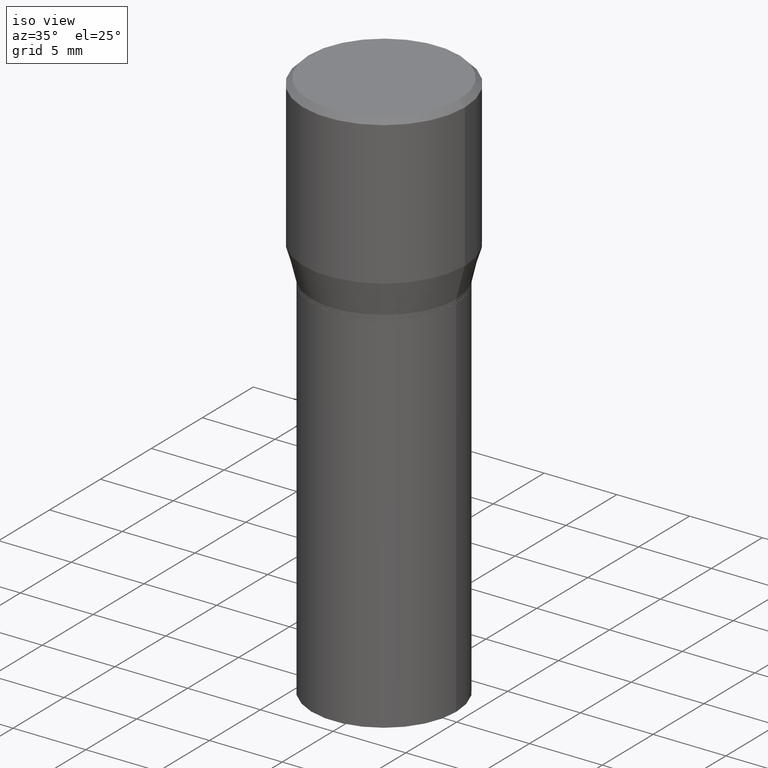
[diagram: clean part render]
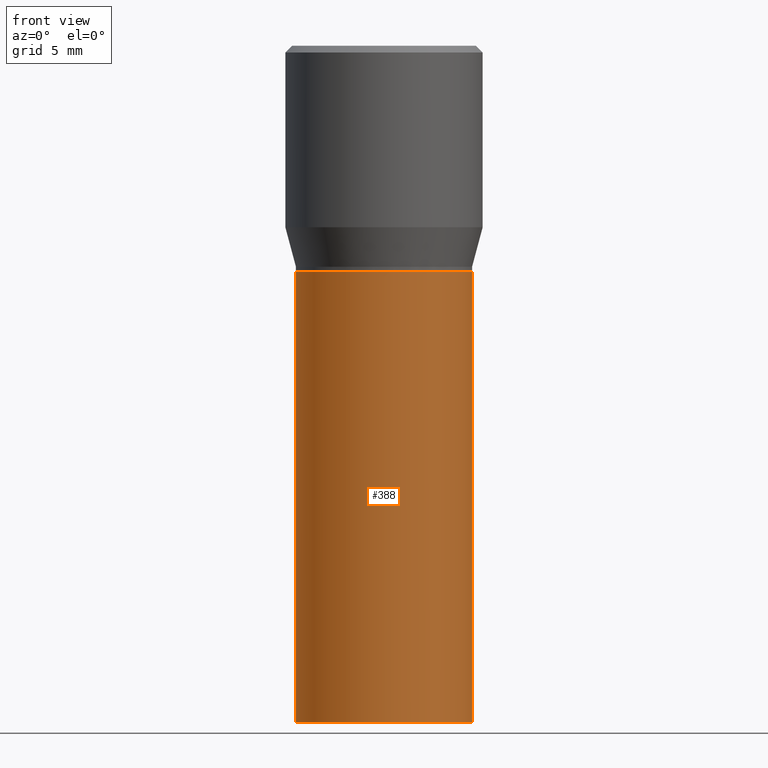
[diagram: tour spotlight — one face highlighted and labeled with its STEP entity id]
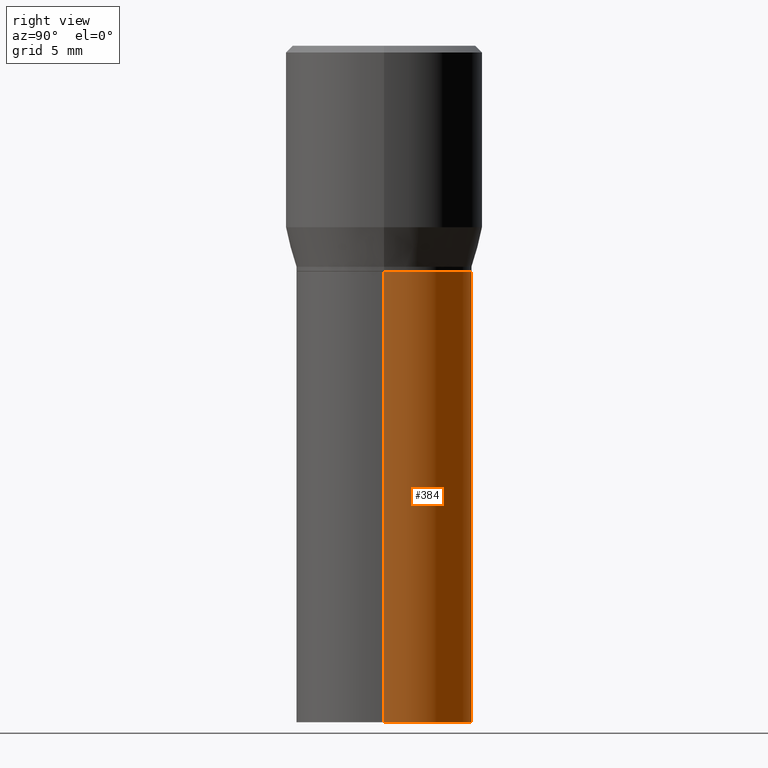
[diagram: tour spotlight — one face highlighted and labeled with its STEP entity id]
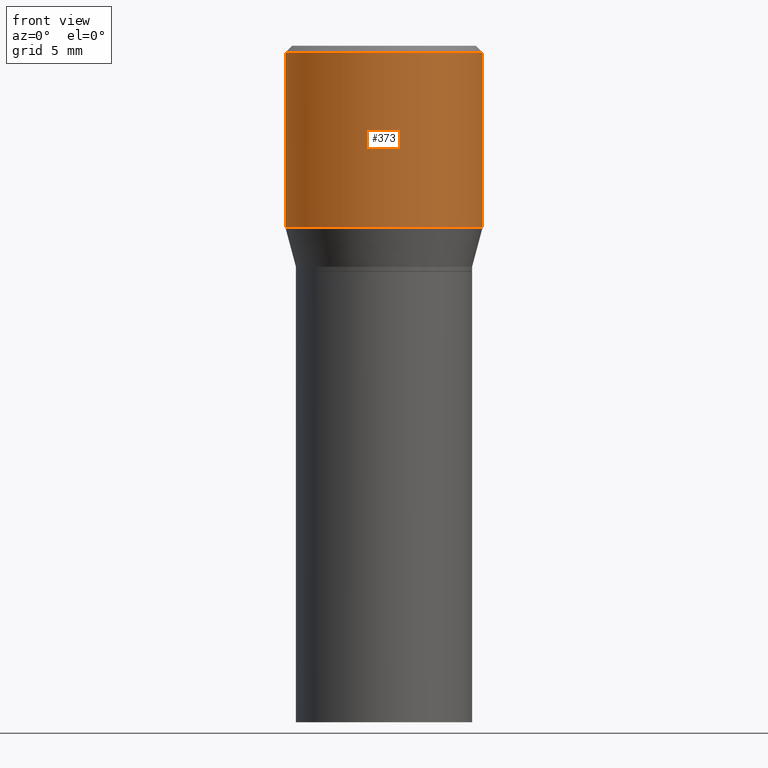
[diagram: tour spotlight — one face highlighted and labeled with its STEP entity id]
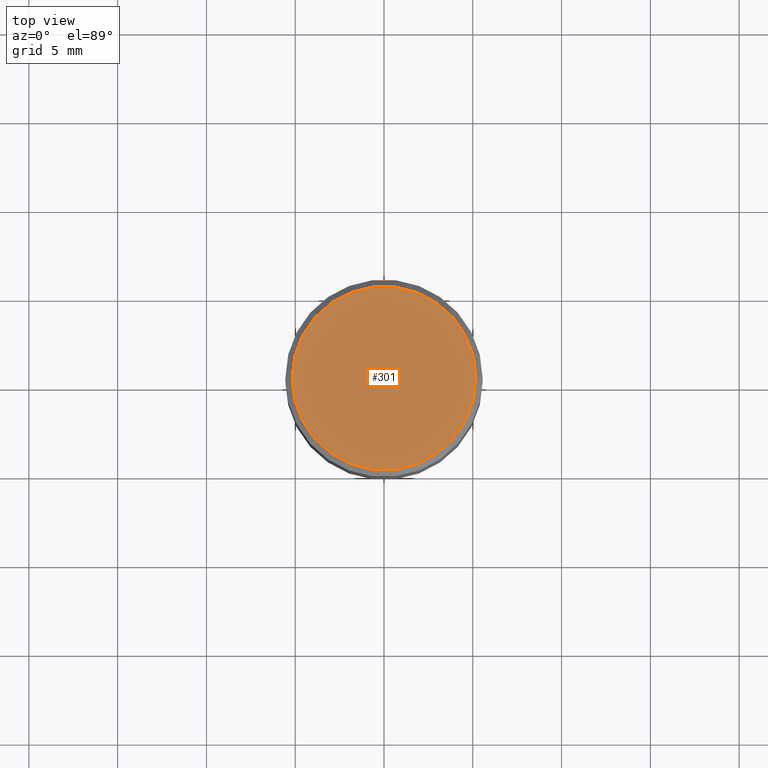
[diagram: tour spotlight — one face highlighted and labeled with its STEP entity id]
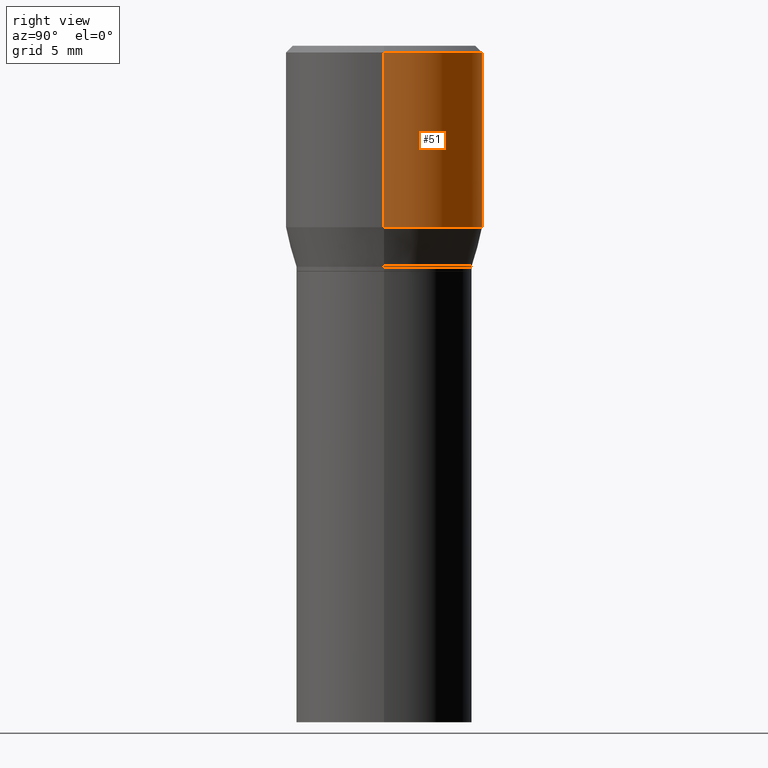
[diagram: tour spotlight — one face highlighted and labeled with its STEP entity id]
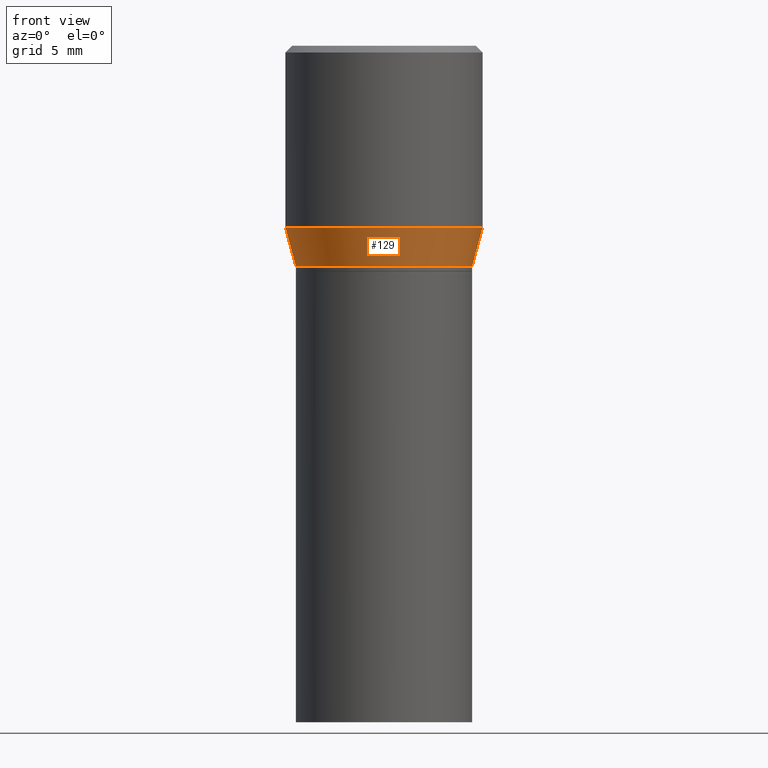
[diagram: tour spotlight — one face highlighted and labeled with its STEP entity id]
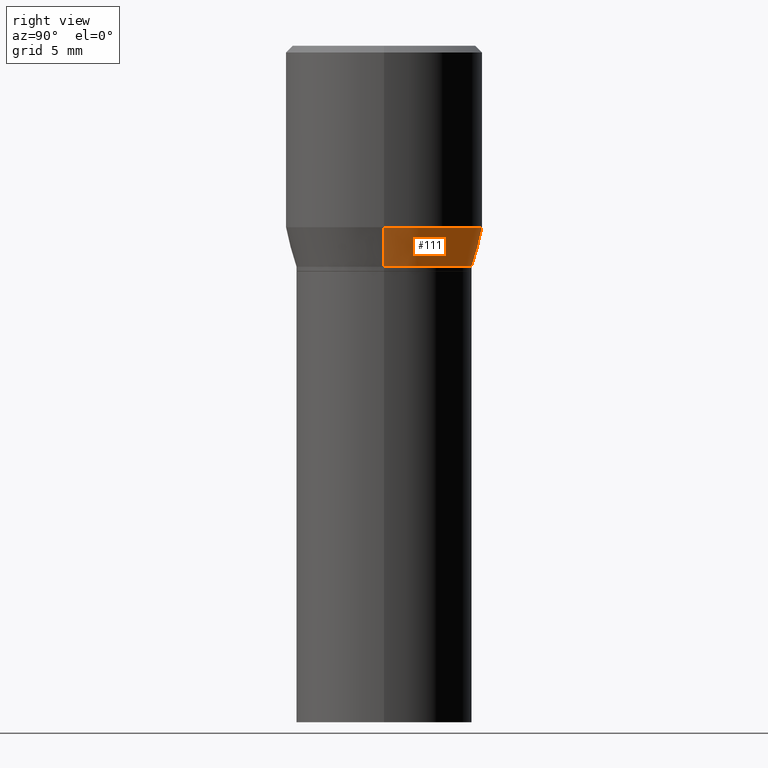
[diagram: tour spotlight — one face highlighted and labeled with its STEP entity id]
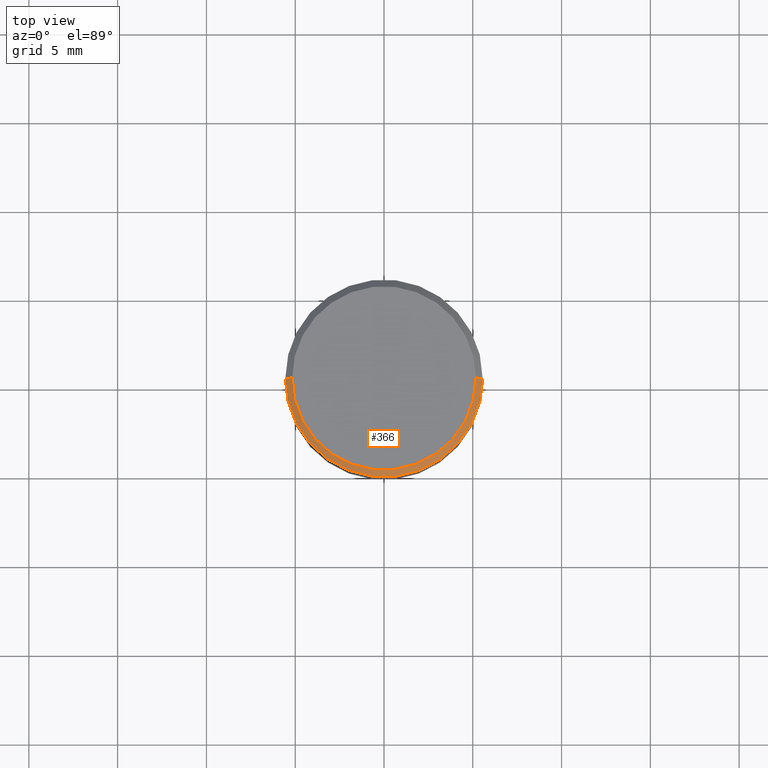
[diagram: tour spotlight — one face highlighted and labeled with its STEP entity id]
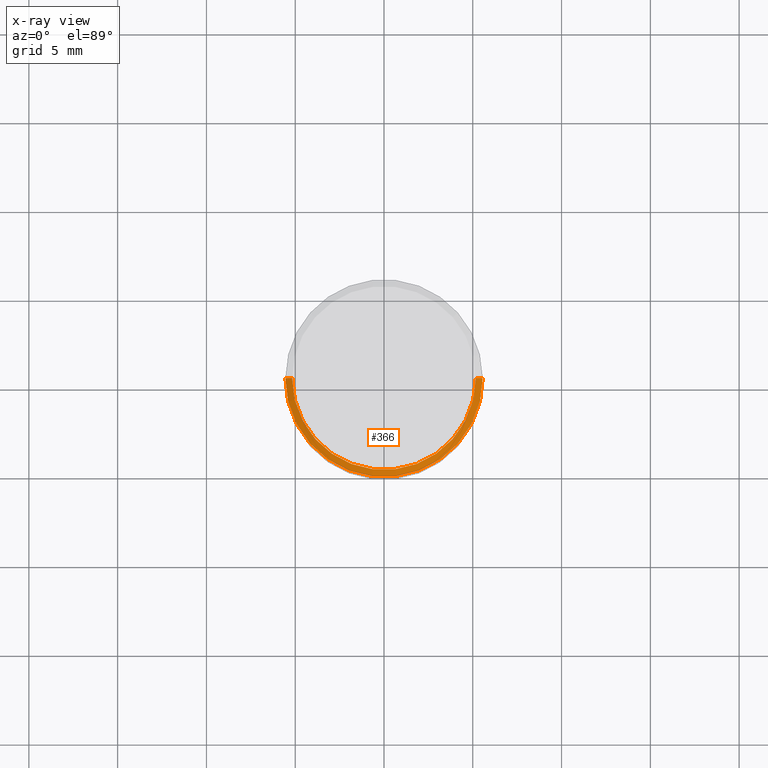
[diagram: x-ray of the same camera — body ghosted, this tour face saturated]
A machine part: a face-by-face anatomy tour. The part has 16 B-rep faces; the first image is the clean iso view, then the 8 largest visible faces are spotlighted one at a time (largest first), each with its STEP entity span.

Face 1 — front view, entity #388. In plain terms, the highlighted cylindrical surface (partial cylindrical patch) has radius 4.9606 mm, axis along (-0, 0, 1).
Definition (entity closure, byte-faithful):
#6 = AXIS2_PLACEMENT_3D ( 'NONE', #427, #128, #246 ) ;
#17 = AXIS2_PLACEMENT_3D ( 'NONE', #25, #180, #69 ) ;
#25 = CARTESIAN_POINT ( 'NONE',  ( 1.222734403092568719E-29, -1.745740669421573186E-15, -0.5000000000000001110 ) ) ;
#67 = DIRECTION ( 'NONE',  ( 1.000000000000000000, -6.982962677686265922E-15, 4.876176775795935793E-29 ) ) ;
#69 = DIRECTION ( 'NONE',  ( 1.000000000000000000, -6.982962677686264344E-15, 0.000000000000000000 ) ) ;
#77 = CARTESIAN_POINT ( 'NONE',  ( 0.1953000000000000014, -1.363772610952127695E-15, 9.523173243129462177E-30 ) ) ;
#83 = CARTESIAN_POINT ( 'NONE',  ( -0.1953000000000000014, -2.103791375903670501E-15, -1.500000000000000222 ) ) ;
#85 = EDGE_CURVE ( 'NONE', #262, #268, #168, .T. ) ;
#94 = DIRECTION ( 'NONE',  ( -2.445468806185136877E-29, 3.491481338843145188E-15, 1.000000000000000000 ) ) ;
#104 = CYLINDRICAL_SURFACE ( 'NONE', #401, 0.1953000000000000014 ) ;
#128 = DIRECTION ( 'NONE',  ( -2.445468806185136597E-29, 3.491481338843145583E-15, 1.000000000000000000 ) ) ;
#161 = ORIENTED_EDGE ( 'NONE', *, *, #85, .F. ) ;
#168 = CIRCLE ( 'NONE', #17, 0.1953000000000000014 ) ;
#172 = DIRECTION ( 'NONE',  ( -2.445468806185136597E-29, 3.491481338843145583E-15, 1.000000000000000000 ) ) ;
#174 = CIRCLE ( 'NONE', #6, 0.1953000000000000014 ) ;
#180 = DIRECTION ( 'NONE',  ( -2.445468806185136597E-29, 3.491481338843145583E-15, 1.000000000000000000 ) ) ;
#187 = ORIENTED_EDGE ( 'NONE', *, *, #261, .T. ) ;
#199 = VERTEX_POINT ( 'NONE', #83 ) ;
#201 = ORIENTED_EDGE ( 'NONE', *, *, #346, .T. ) ;
#205 = FACE_OUTER_BOUND ( 'NONE', #351, .T. ) ;
#214 = CARTESIAN_POINT ( 'NONE',  ( 0.1953000000000000014, -6.600994619216846463E-15, -1.500000000000000222 ) ) ;
#225 = DIRECTION ( 'NONE',  ( -2.445468806185136877E-29, 3.491481338843145188E-15, 1.000000000000000000 ) ) ;
#246 = DIRECTION ( 'NONE',  ( 1.000000000000000000, -6.982962677686269077E-15, 0.000000000000000000 ) ) ;
#260 = LINE ( 'NONE', #77, #377 ) ;
#261 = EDGE_CURVE ( 'NONE', #342, #268, #260, .T. ) ;
#262 = VERTEX_POINT ( 'NONE', #376 ) ;
#268 = VERTEX_POINT ( 'NONE', #444 ) ;
#310 = ORIENTED_EDGE ( 'NONE', *, *, #328, .F. ) ;
#328 = EDGE_CURVE ( 'NONE', #199, #262, #432, .T. ) ;
#342 = VERTEX_POINT ( 'NONE', #214 ) ;
#346 = EDGE_CURVE ( 'NONE', #199, #342, #174, .T. ) ;
#351 = EDGE_LOOP ( 'NONE', ( #310, #201, #187, #161 ) ) ;
#376 = CARTESIAN_POINT ( 'NONE',  ( -0.1953000000000000014, -2.103791375903670501E-15, -0.5000000000000001110 ) ) ;
#377 = VECTOR ( 'NONE', #225, 39.37007874015748143 ) ;
#387 = VECTOR ( 'NONE', #94, 39.37007874015748143 ) ;
#388 = ADVANCED_FACE ( 'NONE', ( #205 ), #104, .T. ) ;
#392 = CARTESIAN_POINT ( 'NONE',  ( 0.000000000000000000, 0.000000000000000000, 0.000000000000000000 ) ) ;
#397 = CARTESIAN_POINT ( 'NONE',  ( -0.1953000000000000014, 1.387689962939475673E-15, -9.606680231267831797E-30 ) ) ;
#401 = AXIS2_PLACEMENT_3D ( 'NONE', #392, #172, #67 ) ;
#427 = CARTESIAN_POINT ( 'NONE',  ( 3.668203209277704895E-29, -5.237222008264718177E-15, -1.500000000000000222 ) ) ;
#432 = LINE ( 'NONE', #397, #387 ) ;
#444 = CARTESIAN_POINT ( 'NONE',  ( 0.1953000000000000014, -3.109513280373700880E-15, -0.5000000000000001110 ) ) ;

Face 2 — right view, entity #384. In plain terms, the highlighted cylindrical surface (partial cylindrical patch) has radius 4.9606 mm, axis along (-0, 0, 1).
Definition (entity closure, byte-faithful):
#4 = AXIS2_PLACEMENT_3D ( 'NONE', #460, #359, #283 ) ;
#26 = CIRCLE ( 'NONE', #4, 0.1953000000000000014 ) ;
#33 = CARTESIAN_POINT ( 'NONE',  ( 0.000000000000000000, 0.000000000000000000, 0.000000000000000000 ) ) ;
#36 = DIRECTION ( 'NONE',  ( 1.000000000000000000, -6.982962677686269077E-15, 0.000000000000000000 ) ) ;
#45 = CIRCLE ( 'NONE', #141, 0.1953000000000000014 ) ;
#54 = EDGE_CURVE ( 'NONE', #268, #262, #26, .T. ) ;
#77 = CARTESIAN_POINT ( 'NONE',  ( 0.1953000000000000014, -1.363772610952127695E-15, 9.523173243129462177E-30 ) ) ;
#83 = CARTESIAN_POINT ( 'NONE',  ( -0.1953000000000000014, -2.103791375903670501E-15, -1.500000000000000222 ) ) ;
#94 = DIRECTION ( 'NONE',  ( -2.445468806185136877E-29, 3.491481338843145188E-15, 1.000000000000000000 ) ) ;
#133 = CARTESIAN_POINT ( 'NONE',  ( 3.668203209277704895E-29, -5.237222008264718177E-15, -1.500000000000000222 ) ) ;
#141 = AXIS2_PLACEMENT_3D ( 'NONE', #133, #363, #36 ) ;
#167 = FACE_OUTER_BOUND ( 'NONE', #350, .T. ) ;
#196 = ORIENTED_EDGE ( 'NONE', *, *, #328, .T. ) ;
#199 = VERTEX_POINT ( 'NONE', #83 ) ;
#211 = CYLINDRICAL_SURFACE ( 'NONE', #257, 0.1953000000000000014 ) ;
#214 = CARTESIAN_POINT ( 'NONE',  ( 0.1953000000000000014, -6.600994619216846463E-15, -1.500000000000000222 ) ) ;
#225 = DIRECTION ( 'NONE',  ( -2.445468806185136877E-29, 3.491481338843145188E-15, 1.000000000000000000 ) ) ;
#234 = ORIENTED_EDGE ( 'NONE', *, *, #327, .T. ) ;
#257 = AXIS2_PLACEMENT_3D ( 'NONE', #33, #316, #457 ) ;
#260 = LINE ( 'NONE', #77, #377 ) ;
#261 = EDGE_CURVE ( 'NONE', #342, #268, #260, .T. ) ;
#262 = VERTEX_POINT ( 'NONE', #376 ) ;
#268 = VERTEX_POINT ( 'NONE', #444 ) ;
#283 = DIRECTION ( 'NONE',  ( 1.000000000000000000, -6.982962677686264344E-15, 0.000000000000000000 ) ) ;
#305 = ORIENTED_EDGE ( 'NONE', *, *, #54, .F. ) ;
#316 = DIRECTION ( 'NONE',  ( -2.445468806185136597E-29, 3.491481338843145583E-15, 1.000000000000000000 ) ) ;
#327 = EDGE_CURVE ( 'NONE', #342, #199, #45, .T. ) ;
#328 = EDGE_CURVE ( 'NONE', #199, #262, #432, .T. ) ;
#342 = VERTEX_POINT ( 'NONE', #214 ) ;
#350 = EDGE_LOOP ( 'NONE', ( #234, #196, #305, #383 ) ) ;
#359 = DIRECTION ( 'NONE',  ( -2.445468806185136597E-29, 3.491481338843145583E-15, 1.000000000000000000 ) ) ;
#363 = DIRECTION ( 'NONE',  ( -2.445468806185136597E-29, 3.491481338843145583E-15, 1.000000000000000000 ) ) ;
#376 = CARTESIAN_POINT ( 'NONE',  ( -0.1953000000000000014, -2.103791375903670501E-15, -0.5000000000000001110 ) ) ;
#377 = VECTOR ( 'NONE', #225, 39.37007874015748143 ) ;
#383 = ORIENTED_EDGE ( 'NONE', *, *, #261, .F. ) ;
#384 = ADVANCED_FACE ( 'NONE', ( #167 ), #211, .T. ) ;
#387 = VECTOR ( 'NONE', #94, 39.37007874015748143 ) ;
#397 = CARTESIAN_POINT ( 'NONE',  ( -0.1953000000000000014, 1.387689962939475673E-15, -9.606680231267831797E-30 ) ) ;
#432 = LINE ( 'NONE', #397, #387 ) ;
#444 = CARTESIAN_POINT ( 'NONE',  ( 0.1953000000000000014, -3.109513280373700880E-15, -0.5000000000000001110 ) ) ;
#457 = DIRECTION ( 'NONE',  ( 1.000000000000000000, -6.982962677686265922E-15, 4.876176775795935793E-29 ) ) ;
#460 = CARTESIAN_POINT ( 'NONE',  ( 1.222734403092568719E-29, -1.745740669421573186E-15, -0.5000000000000001110 ) ) ;

Face 3 — front view, entity #373. In plain terms, the highlighted cylindrical surface (partial cylindrical patch) has radius 5.5562 mm, axis along (-0, 0, 1).
Definition (entity closure, byte-faithful):
#20 = VERTEX_POINT ( 'NONE', #156 ) ;
#55 = ORIENTED_EDGE ( 'NONE', *, *, #213, .T. ) ;
#57 = CARTESIAN_POINT ( 'NONE',  ( 0.000000000000000000, 0.000000000000000000, 0.000000000000000000 ) ) ;
#88 = VERTEX_POINT ( 'NONE', #218 ) ;
#89 = CIRCLE ( 'NONE', #130, 0.2187500000000000000 ) ;
#121 = ORIENTED_EDGE ( 'NONE', *, *, #407, .T. ) ;
#130 = AXIS2_PLACEMENT_3D ( 'NONE', #160, #422, #313 ) ;
#131 = CARTESIAN_POINT ( 'NONE',  ( 0.2187500000000000000, -1.527523085743870843E-15, 1.066663669705360885E-29 ) ) ;
#151 = VERTEX_POINT ( 'NONE', #338 ) ;
#155 = LINE ( 'NONE', #348, #423 ) ;
#156 = CARTESIAN_POINT ( 'NONE',  ( 0.2187500000000000000, -1.579895305826517922E-15, -0.01499999999999999944 ) ) ;
#160 = CARTESIAN_POINT ( 'NONE',  ( 9.842606206466859638E-30, -1.405263310189985589E-15, -0.4024834085625100810 ) ) ;
#171 = FACE_OUTER_BOUND ( 'NONE', #353, .T. ) ;
#175 = EDGE_CURVE ( 'NONE', #302, #20, #349, .T. ) ;
#177 = EDGE_CURVE ( 'NONE', #88, #302, #155, .T. ) ;
#183 = VECTOR ( 'NONE', #277, 39.37007874015748143 ) ;
#186 = CARTESIAN_POINT ( 'NONE',  ( 3.668203209277705088E-31, -5.237222008264718399E-17, -0.01499999999999999944 ) ) ;
#209 = LINE ( 'NONE', #131, #183 ) ;
#213 = EDGE_CURVE ( 'NONE', #88, #151, #89, .T. ) ;
#218 = CARTESIAN_POINT ( 'NONE',  ( -0.2187500000000000000, 1.490489242852337896E-16, -0.4024834085625100810 ) ) ;
#224 = ORIENTED_EDGE ( 'NONE', *, *, #177, .F. ) ;
#269 = ORIENTED_EDGE ( 'NONE', *, *, #175, .F. ) ;
#277 = DIRECTION ( 'NONE',  ( -2.445468806185136877E-29, 3.491481338843145188E-15, 1.000000000000000000 ) ) ;
#285 = AXIS2_PLACEMENT_3D ( 'NONE', #57, #354, #321 ) ;
#297 = AXIS2_PLACEMENT_3D ( 'NONE', #186, #380, #345 ) ;
#302 = VERTEX_POINT ( 'NONE', #357 ) ;
#306 = DIRECTION ( 'NONE',  ( -2.445468806185136877E-29, 3.491481338843145188E-15, 1.000000000000000000 ) ) ;
#313 = DIRECTION ( 'NONE',  ( 1.000000000000000000, -6.982962677686266711E-15, 0.000000000000000000 ) ) ;
#321 = DIRECTION ( 'NONE',  ( 1.000000000000000000, -6.982962677686266711E-15, 4.876176775795935232E-29 ) ) ;
#338 = CARTESIAN_POINT ( 'NONE',  ( 0.2187500000000000000, -2.932786395933856235E-15, -0.4024834085625100810 ) ) ;
#345 = DIRECTION ( 'NONE',  ( 1.000000000000000000, -6.982962677686266711E-15, 0.000000000000000000 ) ) ;
#348 = CARTESIAN_POINT ( 'NONE',  ( -0.2187500000000000000, 1.554312234475219157E-15, -1.076017050993260622E-29 ) ) ;
#349 = CIRCLE ( 'NONE', #297, 0.2187500000000000000 ) ;
#353 = EDGE_LOOP ( 'NONE', ( #224, #55, #121, #269 ) ) ;
#354 = DIRECTION ( 'NONE',  ( -2.445468806185136597E-29, 3.491481338843145583E-15, 1.000000000000000000 ) ) ;
#357 = CARTESIAN_POINT ( 'NONE',  ( -0.2187500000000000000, 8.254944693389027239E-16, -0.01499999999999999944 ) ) ;
#361 = CYLINDRICAL_SURFACE ( 'NONE', #285, 0.2187500000000000000 ) ;
#373 = ADVANCED_FACE ( 'NONE', ( #171 ), #361, .T. ) ;
#380 = DIRECTION ( 'NONE',  ( -2.445468806185136597E-29, 3.491481338843145583E-15, 1.000000000000000000 ) ) ;
#407 = EDGE_CURVE ( 'NONE', #151, #20, #209, .T. ) ;
#422 = DIRECTION ( 'NONE',  ( -2.445468806185136597E-29, 3.491481338843145583E-15, 1.000000000000000000 ) ) ;
#423 = VECTOR ( 'NONE', #306, 39.37007874015748143 ) ;

Face 4 — top view, entity #301. In plain terms, the highlighted planar face has unit normal (0, -0, -1).
Definition (entity closure, byte-faithful):
#12 = CARTESIAN_POINT ( 'NONE',  ( -2.592568563193567003E-45, 3.701500806376036554E-31, 1.060151966214568974E-16 ) ) ;
#28 = DIRECTION ( 'NONE',  ( 1.000000000000000000, -6.982962677686266711E-15, 4.875065411617369217E-29 ) ) ;
#53 = DIRECTION ( 'NONE',  ( 1.000000000000000000, -6.982962677686266711E-15, 4.875065411617369217E-29 ) ) ;
#59 = CIRCLE ( 'NONE', #448, 0.2037499999999999867 ) ;
#61 = CARTESIAN_POINT ( 'NONE',  ( 1.422778645578576487E-15, 0.2037499999999999867, -6.583817244785623957E-16 ) ) ;
#79 = DIRECTION ( 'NONE',  ( -2.445468806185136597E-29, 3.491481338843145583E-15, 1.000000000000000000 ) ) ;
#99 = AXIS2_PLACEMENT_3D ( 'NONE', #61, #360, #170 ) ;
#114 = ORIENTED_EDGE ( 'NONE', *, *, #202, .T. ) ;
#144 = EDGE_LOOP ( 'NONE', ( #114, #412 ) ) ;
#149 = CIRCLE ( 'NONE', #400, 0.2037499999999999867 ) ;
#170 = DIRECTION ( 'NONE',  ( -1.000000000000000000, 6.982962677686265922E-15, -4.876176775795935793E-29 ) ) ;
#202 = EDGE_CURVE ( 'NONE', #416, #450, #149, .T. ) ;
#247 = DIRECTION ( 'NONE',  ( -2.445468806185136597E-29, 3.491481338843145583E-15, 1.000000000000000000 ) ) ;
#274 = CARTESIAN_POINT ( 'NONE',  ( -2.592568563193567003E-45, 3.701500806376036554E-31, 1.060151966214568974E-16 ) ) ;
#280 = EDGE_CURVE ( 'NONE', #450, #416, #59, .T. ) ;
#301 = ADVANCED_FACE ( 'NONE', ( #463 ), #459, .F. ) ;
#360 = DIRECTION ( 'NONE',  ( 2.438088387897960049E-29, -3.491481338843145188E-15, -1.000000000000000000 ) ) ;
#400 = AXIS2_PLACEMENT_3D ( 'NONE', #12, #79, #53 ) ;
#404 = CARTESIAN_POINT ( 'NONE',  ( 0.2037499999999999867, -1.475466312070559275E-15, 1.060151966214670170E-16 ) ) ;
#412 = ORIENTED_EDGE ( 'NONE', *, *, #280, .T. ) ;
#416 = VERTEX_POINT ( 'NONE', #425 ) ;
#425 = CARTESIAN_POINT ( 'NONE',  ( -0.2037499999999999867, 1.448964755619900421E-15, 1.060151966214468518E-16 ) ) ;
#448 = AXIS2_PLACEMENT_3D ( 'NONE', #274, #247, #28 ) ;
#450 = VERTEX_POINT ( 'NONE', #404 ) ;
#459 = PLANE ( 'NONE',  #99 ) ;
#463 = FACE_OUTER_BOUND ( 'NONE', #144, .T. ) ;

Face 5 — right view, entity #51. In plain terms, the highlighted cylindrical surface (partial cylindrical patch) has radius 5.5562 mm, axis along (-0, 0, 1).
Definition (entity closure, byte-faithful):
#20 = VERTEX_POINT ( 'NONE', #156 ) ;
#32 = DIRECTION ( 'NONE',  ( 1.000000000000000000, -6.982962677686266711E-15, 0.000000000000000000 ) ) ;
#51 = ADVANCED_FACE ( 'NONE', ( #105 ), #322, .T. ) ;
#62 = CARTESIAN_POINT ( 'NONE',  ( 0.000000000000000000, 0.000000000000000000, 0.000000000000000000 ) ) ;
#74 = DIRECTION ( 'NONE',  ( -2.445468806185136597E-29, 3.491481338843145583E-15, 1.000000000000000000 ) ) ;
#88 = VERTEX_POINT ( 'NONE', #218 ) ;
#100 = AXIS2_PLACEMENT_3D ( 'NONE', #329, #281, #32 ) ;
#105 = FACE_OUTER_BOUND ( 'NONE', #409, .T. ) ;
#131 = CARTESIAN_POINT ( 'NONE',  ( 0.2187500000000000000, -1.527523085743870843E-15, 1.066663669705360885E-29 ) ) ;
#151 = VERTEX_POINT ( 'NONE', #338 ) ;
#154 = ORIENTED_EDGE ( 'NONE', *, *, #407, .F. ) ;
#155 = LINE ( 'NONE', #348, #423 ) ;
#156 = CARTESIAN_POINT ( 'NONE',  ( 0.2187500000000000000, -1.579895305826517922E-15, -0.01499999999999999944 ) ) ;
#177 = EDGE_CURVE ( 'NONE', #88, #302, #155, .T. ) ;
#183 = VECTOR ( 'NONE', #277, 39.37007874015748143 ) ;
#197 = ORIENTED_EDGE ( 'NONE', *, *, #177, .T. ) ;
#206 = DIRECTION ( 'NONE',  ( 1.000000000000000000, -6.982962677686266711E-15, 4.876176775795935232E-29 ) ) ;
#209 = LINE ( 'NONE', #131, #183 ) ;
#218 = CARTESIAN_POINT ( 'NONE',  ( -0.2187500000000000000, 1.490489242852337896E-16, -0.4024834085625100810 ) ) ;
#220 = AXIS2_PLACEMENT_3D ( 'NONE', #62, #433, #206 ) ;
#221 = CIRCLE ( 'NONE', #100, 0.2187500000000000000 ) ;
#264 = ORIENTED_EDGE ( 'NONE', *, *, #333, .F. ) ;
#277 = DIRECTION ( 'NONE',  ( -2.445468806185136877E-29, 3.491481338843145188E-15, 1.000000000000000000 ) ) ;
#281 = DIRECTION ( 'NONE',  ( -2.445468806185136597E-29, 3.491481338843145583E-15, 1.000000000000000000 ) ) ;
#284 = CIRCLE ( 'NONE', #318, 0.2187500000000000000 ) ;
#302 = VERTEX_POINT ( 'NONE', #357 ) ;
#304 = ORIENTED_EDGE ( 'NONE', *, *, #445, .T. ) ;
#306 = DIRECTION ( 'NONE',  ( -2.445468806185136877E-29, 3.491481338843145188E-15, 1.000000000000000000 ) ) ;
#318 = AXIS2_PLACEMENT_3D ( 'NONE', #339, #74, #337 ) ;
#322 = CYLINDRICAL_SURFACE ( 'NONE', #220, 0.2187500000000000000 ) ;
#329 = CARTESIAN_POINT ( 'NONE',  ( 3.668203209277705088E-31, -5.237222008264718399E-17, -0.01499999999999999944 ) ) ;
#333 = EDGE_CURVE ( 'NONE', #20, #302, #221, .T. ) ;
#337 = DIRECTION ( 'NONE',  ( 1.000000000000000000, -6.982962677686266711E-15, 0.000000000000000000 ) ) ;
#338 = CARTESIAN_POINT ( 'NONE',  ( 0.2187500000000000000, -2.932786395933856235E-15, -0.4024834085625100810 ) ) ;
#339 = CARTESIAN_POINT ( 'NONE',  ( 9.842606206466859638E-30, -1.405263310189985589E-15, -0.4024834085625100810 ) ) ;
#348 = CARTESIAN_POINT ( 'NONE',  ( -0.2187500000000000000, 1.554312234475219157E-15, -1.076017050993260622E-29 ) ) ;
#357 = CARTESIAN_POINT ( 'NONE',  ( -0.2187500000000000000, 8.254944693389027239E-16, -0.01499999999999999944 ) ) ;
#407 = EDGE_CURVE ( 'NONE', #151, #20, #209, .T. ) ;
#409 = EDGE_LOOP ( 'NONE', ( #304, #197, #264, #154 ) ) ;
#423 = VECTOR ( 'NONE', #306, 39.37007874015748143 ) ;
#433 = DIRECTION ( 'NONE',  ( -2.445468806185136597E-29, 3.491481338843145583E-15, 1.000000000000000000 ) ) ;
#445 = EDGE_CURVE ( 'NONE', #151, #88, #284, .T. ) ;

Face 6 — front view, entity #129. In plain terms, the highlighted conical surface has half-angle 15 deg.
Definition (entity closure, byte-faithful):
#16 = CARTESIAN_POINT ( 'NONE',  ( 0.1952999999999999736, -3.074598466985269231E-15, -0.4900000000000001021 ) ) ;
#19 = DIRECTION ( 'NONE',  ( 0.2588190451025214611, 1.565188264969621573E-15, 0.9659258262890682012 ) ) ;
#80 = VECTOR ( 'NONE', #19, 39.37007874015747433 ) ;
#82 = VERTEX_POINT ( 'NONE', #249 ) ;
#86 = DIRECTION ( 'NONE',  ( 1.000000000000000000, -6.982962677686265922E-15, 0.000000000000000000 ) ) ;
#87 = VERTEX_POINT ( 'NONE', #442 ) ;
#88 = VERTEX_POINT ( 'NONE', #218 ) ;
#89 = CIRCLE ( 'NONE', #130, 0.2187500000000000000 ) ;
#107 = AXIS2_PLACEMENT_3D ( 'NONE', #293, #405, #258 ) ;
#124 = ORIENTED_EDGE ( 'NONE', *, *, #208, .T. ) ;
#129 = ADVANCED_FACE ( 'NONE', ( #368 ), #275, .T. ) ;
#130 = AXIS2_PLACEMENT_3D ( 'NONE', #160, #422, #313 ) ;
#148 = ORIENTED_EDGE ( 'NONE', *, *, #213, .F. ) ;
#151 = VERTEX_POINT ( 'NONE', #338 ) ;
#152 = LINE ( 'NONE', #16, #80 ) ;
#160 = CARTESIAN_POINT ( 'NONE',  ( 9.842606206466859638E-30, -1.405263310189985589E-15, -0.4024834085625100810 ) ) ;
#162 = EDGE_CURVE ( 'NONE', #82, #88, #295, .T. ) ;
#191 = EDGE_CURVE ( 'NONE', #87, #151, #152, .T. ) ;
#192 = EDGE_LOOP ( 'NONE', ( #240, #124, #233, #148 ) ) ;
#208 = EDGE_CURVE ( 'NONE', #82, #87, #461, .T. ) ;
#213 = EDGE_CURVE ( 'NONE', #88, #151, #89, .T. ) ;
#215 = AXIS2_PLACEMENT_3D ( 'NONE', #420, #267, #86 ) ;
#218 = CARTESIAN_POINT ( 'NONE',  ( -0.2187500000000000000, 1.490489242852337896E-16, -0.4024834085625100810 ) ) ;
#233 = ORIENTED_EDGE ( 'NONE', *, *, #191, .T. ) ;
#240 = ORIENTED_EDGE ( 'NONE', *, *, #162, .F. ) ;
#249 = CARTESIAN_POINT ( 'NONE',  ( -0.1952999999999999736, -8.704348440421619739E-17, -0.4900000000000001021 ) ) ;
#256 = DIRECTION ( 'NONE',  ( -0.2588190451025214611, 5.211531920934551042E-15, 0.9659258262890682012 ) ) ;
#258 = DIRECTION ( 'NONE',  ( 1.000000000000000000, -6.982962677686265922E-15, 0.000000000000000000 ) ) ;
#267 = DIRECTION ( 'NONE',  ( -2.445468806185136597E-29, 3.491481338843145583E-15, 1.000000000000000000 ) ) ;
#275 = CONICAL_SURFACE ( 'NONE', #107, 0.1952999999999999736, 0.2617993877991501295 ) ;
#293 = CARTESIAN_POINT ( 'NONE',  ( 1.198279715030717173E-29, -1.710825856033141537E-15, -0.4900000000000001021 ) ) ;
#295 = LINE ( 'NONE', #438, #439 ) ;
#313 = DIRECTION ( 'NONE',  ( 1.000000000000000000, -6.982962677686266711E-15, 0.000000000000000000 ) ) ;
#338 = CARTESIAN_POINT ( 'NONE',  ( 0.2187500000000000000, -2.932786395933856235E-15, -0.4024834085625100810 ) ) ;
#368 = FACE_OUTER_BOUND ( 'NONE', #192, .T. ) ;
#405 = DIRECTION ( 'NONE',  ( -2.445468806185136597E-29, 3.491481338843145583E-15, 1.000000000000000000 ) ) ;
#420 = CARTESIAN_POINT ( 'NONE',  ( 1.198279715030717173E-29, -1.710825856033141537E-15, -0.4900000000000001021 ) ) ;
#422 = DIRECTION ( 'NONE',  ( -2.445468806185136597E-29, 3.491481338843145583E-15, 1.000000000000000000 ) ) ;
#438 = CARTESIAN_POINT ( 'NONE',  ( -0.1952999999999999736, -3.231358930936662090E-16, -0.4900000000000001021 ) ) ;
#439 = VECTOR ( 'NONE', #256, 39.37007874015747433 ) ;
#442 = CARTESIAN_POINT ( 'NONE',  ( 0.1952999999999999736, -3.074598466985269231E-15, -0.4900000000000001021 ) ) ;
#461 = CIRCLE ( 'NONE', #215, 0.1952999999999999736 ) ;

Face 7 — right view, entity #111. In plain terms, the highlighted conical surface has half-angle 15 deg.
Definition (entity closure, byte-faithful):
#3 = DIRECTION ( 'NONE',  ( -2.445468806185136597E-29, 3.491481338843145583E-15, 1.000000000000000000 ) ) ;
#5 = CARTESIAN_POINT ( 'NONE',  ( 1.198279715030717173E-29, -1.710825856033141537E-15, -0.4900000000000001021 ) ) ;
#16 = CARTESIAN_POINT ( 'NONE',  ( 0.1952999999999999736, -3.074598466985269231E-15, -0.4900000000000001021 ) ) ;
#19 = DIRECTION ( 'NONE',  ( 0.2588190451025214611, 1.565188264969621573E-15, 0.9659258262890682012 ) ) ;
#24 = CARTESIAN_POINT ( 'NONE',  ( 1.198279715030717173E-29, -1.710825856033141537E-15, -0.4900000000000001021 ) ) ;
#40 = DIRECTION ( 'NONE',  ( 1.000000000000000000, -6.982962677686265922E-15, 0.000000000000000000 ) ) ;
#42 = ORIENTED_EDGE ( 'NONE', *, *, #162, .T. ) ;
#74 = DIRECTION ( 'NONE',  ( -2.445468806185136597E-29, 3.491481338843145583E-15, 1.000000000000000000 ) ) ;
#80 = VECTOR ( 'NONE', #19, 39.37007874015747433 ) ;
#82 = VERTEX_POINT ( 'NONE', #249 ) ;
#87 = VERTEX_POINT ( 'NONE', #442 ) ;
#88 = VERTEX_POINT ( 'NONE', #218 ) ;
#111 = ADVANCED_FACE ( 'NONE', ( #365 ), #413, .T. ) ;
#117 = EDGE_LOOP ( 'NONE', ( #272, #42, #314, #347 ) ) ;
#151 = VERTEX_POINT ( 'NONE', #338 ) ;
#152 = LINE ( 'NONE', #16, #80 ) ;
#162 = EDGE_CURVE ( 'NONE', #82, #88, #295, .T. ) ;
#176 = DIRECTION ( 'NONE',  ( 1.000000000000000000, -6.982962677686265922E-15, 0.000000000000000000 ) ) ;
#191 = EDGE_CURVE ( 'NONE', #87, #151, #152, .T. ) ;
#218 = CARTESIAN_POINT ( 'NONE',  ( -0.2187500000000000000, 1.490489242852337896E-16, -0.4024834085625100810 ) ) ;
#245 = CIRCLE ( 'NONE', #311, 0.1952999999999999736 ) ;
#249 = CARTESIAN_POINT ( 'NONE',  ( -0.1952999999999999736, -8.704348440421619739E-17, -0.4900000000000001021 ) ) ;
#256 = DIRECTION ( 'NONE',  ( -0.2588190451025214611, 5.211531920934551042E-15, 0.9659258262890682012 ) ) ;
#272 = ORIENTED_EDGE ( 'NONE', *, *, #289, .T. ) ;
#282 = AXIS2_PLACEMENT_3D ( 'NONE', #5, #3, #40 ) ;
#284 = CIRCLE ( 'NONE', #318, 0.2187500000000000000 ) ;
#289 = EDGE_CURVE ( 'NONE', #87, #82, #245, .T. ) ;
#295 = LINE ( 'NONE', #438, #439 ) ;
#311 = AXIS2_PLACEMENT_3D ( 'NONE', #24, #324, #176 ) ;
#314 = ORIENTED_EDGE ( 'NONE', *, *, #445, .F. ) ;
#318 = AXIS2_PLACEMENT_3D ( 'NONE', #339, #74, #337 ) ;
#324 = DIRECTION ( 'NONE',  ( -2.445468806185136597E-29, 3.491481338843145583E-15, 1.000000000000000000 ) ) ;
#337 = DIRECTION ( 'NONE',  ( 1.000000000000000000, -6.982962677686266711E-15, 0.000000000000000000 ) ) ;
#338 = CARTESIAN_POINT ( 'NONE',  ( 0.2187500000000000000, -2.932786395933856235E-15, -0.4024834085625100810 ) ) ;
#339 = CARTESIAN_POINT ( 'NONE',  ( 9.842606206466859638E-30, -1.405263310189985589E-15, -0.4024834085625100810 ) ) ;
#347 = ORIENTED_EDGE ( 'NONE', *, *, #191, .F. ) ;
#365 = FACE_OUTER_BOUND ( 'NONE', #117, .T. ) ;
#413 = CONICAL_SURFACE ( 'NONE', #282, 0.1952999999999999736, 0.2617993877991501295 ) ;
#438 = CARTESIAN_POINT ( 'NONE',  ( -0.1952999999999999736, -3.231358930936662090E-16, -0.4900000000000001021 ) ) ;
#439 = VECTOR ( 'NONE', #256, 39.37007874015747433 ) ;
#442 = CARTESIAN_POINT ( 'NONE',  ( 0.1952999999999999736, -3.074598466985269231E-15, -0.4900000000000001021 ) ) ;
#445 = EDGE_CURVE ( 'NONE', #151, #88, #284, .T. ) ;

Face 8 — top view, entity #366. An x-ray twin of the same camera follows (body ghosted, this face saturated) — the face is partly hidden behind the body. In plain terms, the highlighted conical surface has half-angle 45 deg.
Definition (entity closure, byte-faithful):
#11 = ORIENTED_EDGE ( 'NONE', *, *, #237, .F. ) ;
#12 = CARTESIAN_POINT ( 'NONE',  ( -2.592568563193567003E-45, 3.701500806376036554E-31, 1.060151966214568974E-16 ) ) ;
#20 = VERTEX_POINT ( 'NONE', #156 ) ;
#27 = AXIS2_PLACEMENT_3D ( 'NONE', #92, #287, #239 ) ;
#43 = CARTESIAN_POINT ( 'NONE',  ( -0.2187500000000000000, 1.475150865661223567E-15, -0.01499999999999999944 ) ) ;
#44 = VECTOR ( 'NONE', #455, 39.37007874015748143 ) ;
#50 = CARTESIAN_POINT ( 'NONE',  ( 0.2187500000000000000, -1.553106157095169608E-15, -0.01499999999999999944 ) ) ;
#52 = ORIENTED_EDGE ( 'NONE', *, *, #202, .F. ) ;
#53 = DIRECTION ( 'NONE',  ( 1.000000000000000000, -6.982962677686266711E-15, 4.875065411617369217E-29 ) ) ;
#79 = DIRECTION ( 'NONE',  ( -2.445468806185136597E-29, 3.491481338843145583E-15, 1.000000000000000000 ) ) ;
#92 = CARTESIAN_POINT ( 'NONE',  ( 3.668203209277705088E-31, -5.237222008264718399E-17, -0.01499999999999999944 ) ) ;
#126 = ORIENTED_EDGE ( 'NONE', *, *, #216, .T. ) ;
#149 = CIRCLE ( 'NONE', #400, 0.2037499999999999867 ) ;
#156 = CARTESIAN_POINT ( 'NONE',  ( 0.2187500000000000000, -1.579895305826517922E-15, -0.01499999999999999944 ) ) ;
#164 = DIRECTION ( 'NONE',  ( -0.7071067811865452413, 2.468850131082233000E-15, -0.7071067811865497932 ) ) ;
#175 = EDGE_CURVE ( 'NONE', #302, #20, #349, .T. ) ;
#186 = CARTESIAN_POINT ( 'NONE',  ( 3.668203209277705088E-31, -5.237222008264718399E-17, -0.01499999999999999944 ) ) ;
#188 = VECTOR ( 'NONE', #164, 39.37007874015748143 ) ;
#202 = EDGE_CURVE ( 'NONE', #416, #450, #149, .T. ) ;
#216 = EDGE_CURVE ( 'NONE', #416, #302, #453, .T. ) ;
#237 = EDGE_CURVE ( 'NONE', #450, #20, #315, .T. ) ;
#239 = DIRECTION ( 'NONE',  ( -1.000000000000000000, 6.982962677686266711E-15, 0.000000000000000000 ) ) ;
#259 = EDGE_LOOP ( 'NONE', ( #11, #52, #126, #419 ) ) ;
#287 = DIRECTION ( 'NONE',  ( 2.445468806185136597E-29, -3.491481338843145583E-15, -1.000000000000000000 ) ) ;
#297 = AXIS2_PLACEMENT_3D ( 'NONE', #186, #380, #345 ) ;
#302 = VERTEX_POINT ( 'NONE', #357 ) ;
#315 = LINE ( 'NONE', #50, #44 ) ;
#345 = DIRECTION ( 'NONE',  ( 1.000000000000000000, -6.982962677686266711E-15, 0.000000000000000000 ) ) ;
#349 = CIRCLE ( 'NONE', #297, 0.2187500000000000000 ) ;
#357 = CARTESIAN_POINT ( 'NONE',  ( -0.2187500000000000000, 8.254944693389027239E-16, -0.01499999999999999944 ) ) ;
#366 = ADVANCED_FACE ( 'NONE', ( #424 ), #415, .T. ) ;
#380 = DIRECTION ( 'NONE',  ( -2.445468806185136597E-29, 3.491481338843145583E-15, 1.000000000000000000 ) ) ;
#400 = AXIS2_PLACEMENT_3D ( 'NONE', #12, #79, #53 ) ;
#404 = CARTESIAN_POINT ( 'NONE',  ( 0.2037499999999999867, -1.475466312070559275E-15, 1.060151966214670170E-16 ) ) ;
#415 = CONICAL_SURFACE ( 'NONE', #27, 0.2187500000000000000, 0.7853981633974450594 ) ;
#416 = VERTEX_POINT ( 'NONE', #425 ) ;
#419 = ORIENTED_EDGE ( 'NONE', *, *, #175, .T. ) ;
#424 = FACE_OUTER_BOUND ( 'NONE', #259, .T. ) ;
#425 = CARTESIAN_POINT ( 'NONE',  ( -0.2037499999999999867, 1.448964755619900421E-15, 1.060151966214468518E-16 ) ) ;
#450 = VERTEX_POINT ( 'NONE', #404 ) ;
#453 = LINE ( 'NONE', #43, #188 ) ;
#455 = DIRECTION ( 'NONE',  ( 0.7071067811865452413, -7.319954787623248157E-15, -0.7071067811865497932 ) ) ;